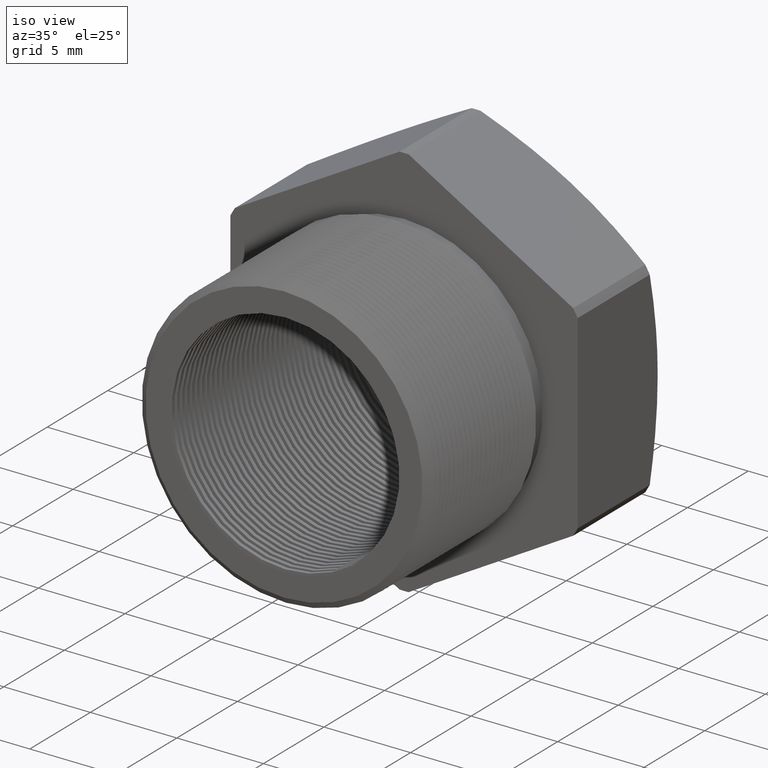
[diagram: clean part render]
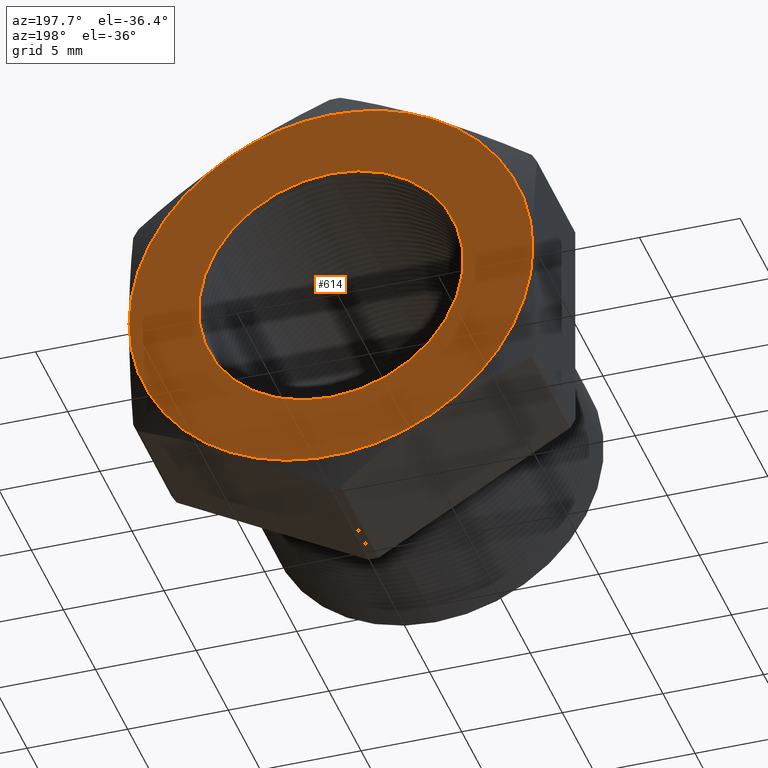
[diagram: tour spotlight — one face highlighted and labeled with its STEP entity id]
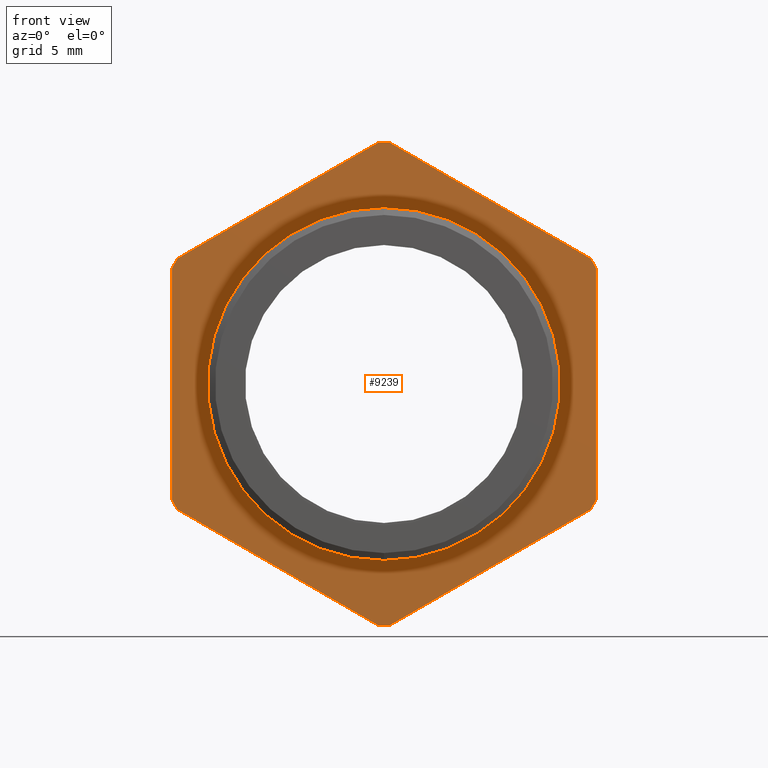
[diagram: tour spotlight — one face highlighted and labeled with its STEP entity id]
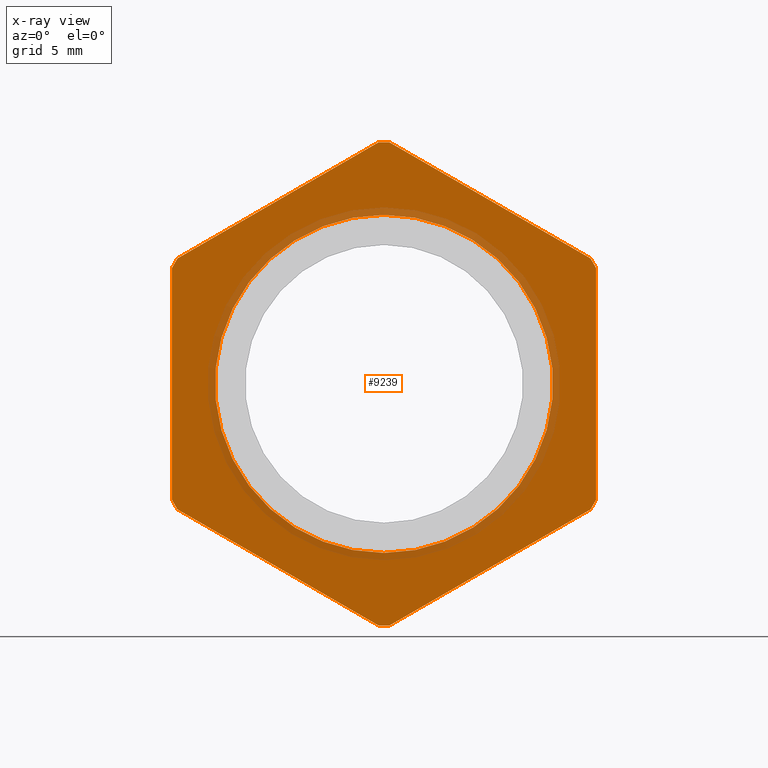
[diagram: x-ray of the same camera — body ghosted, this tour face saturated]
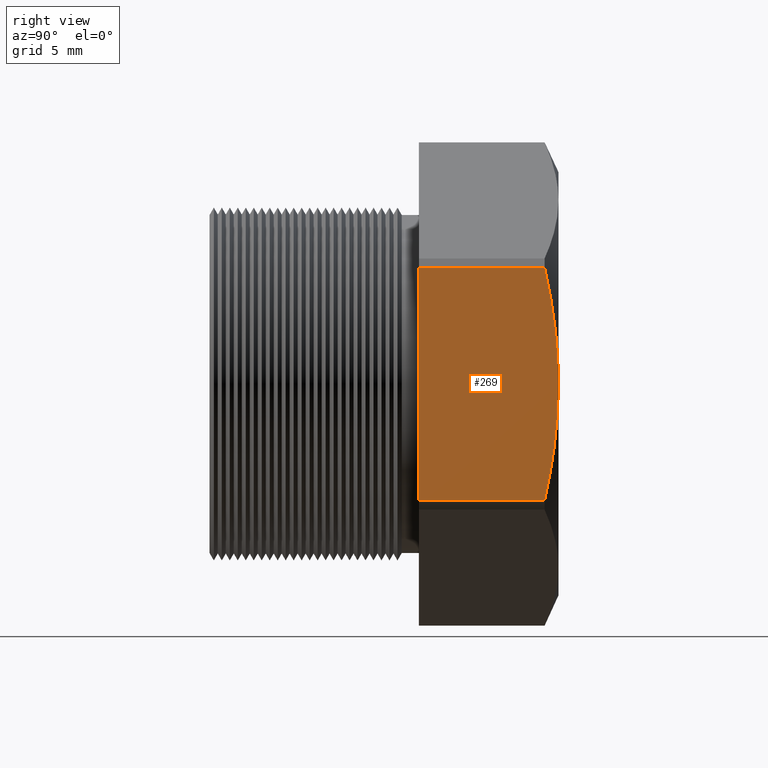
[diagram: tour spotlight — one face highlighted and labeled with its STEP entity id]
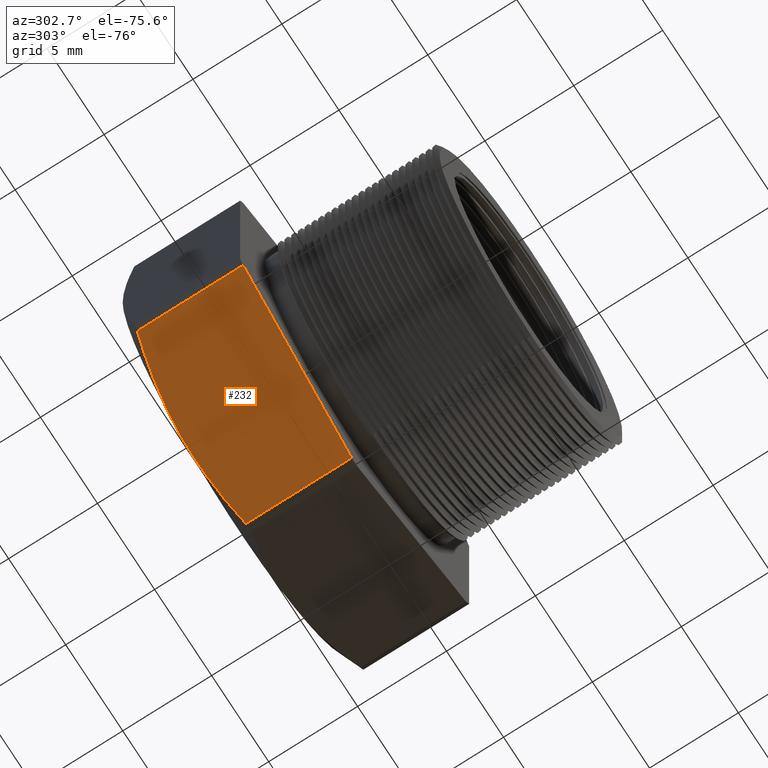
[diagram: tour spotlight — one face highlighted and labeled with its STEP entity id]
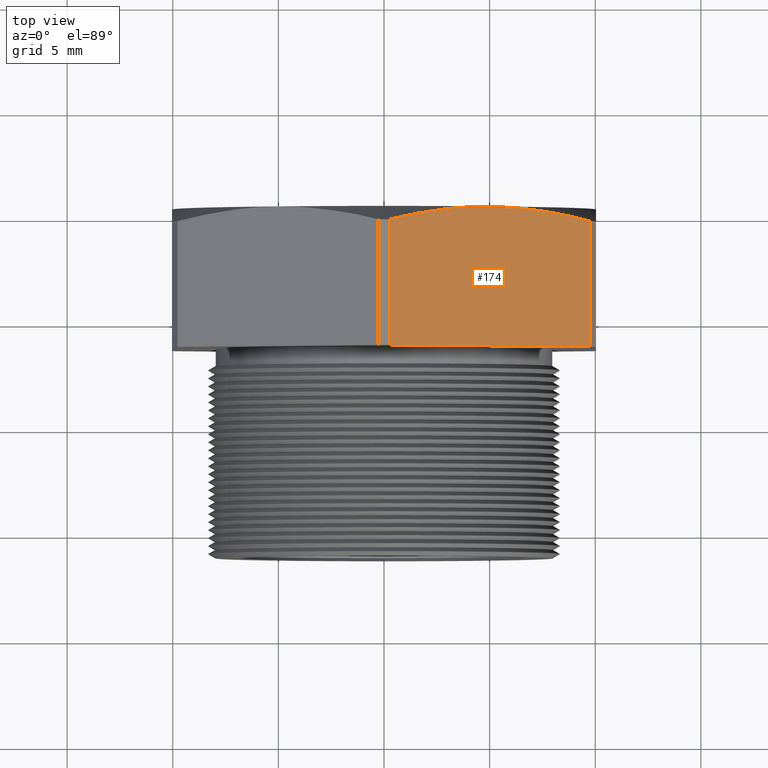
[diagram: tour spotlight — one face highlighted and labeled with its STEP entity id]
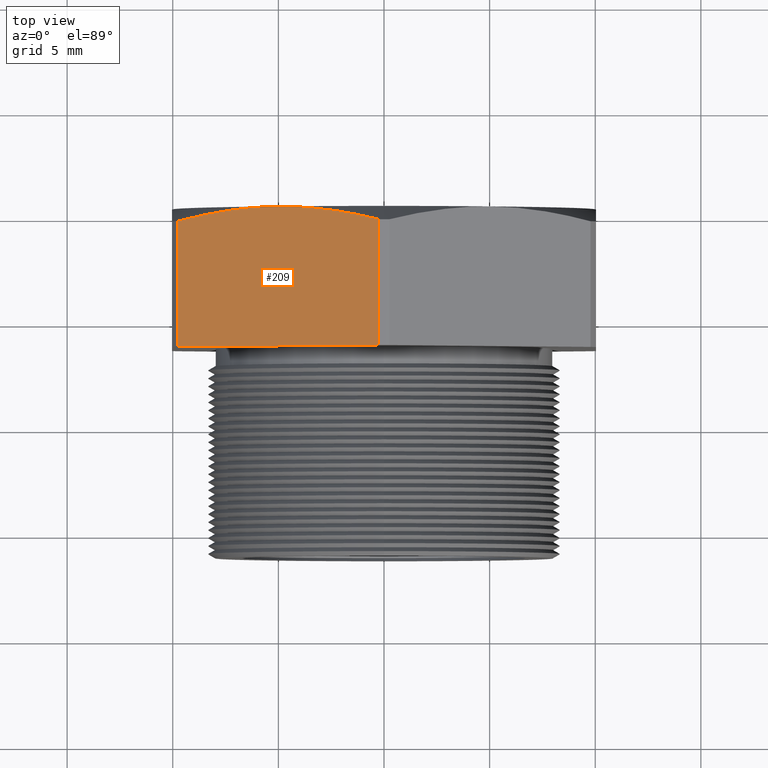
[diagram: tour spotlight — one face highlighted and labeled with its STEP entity id]
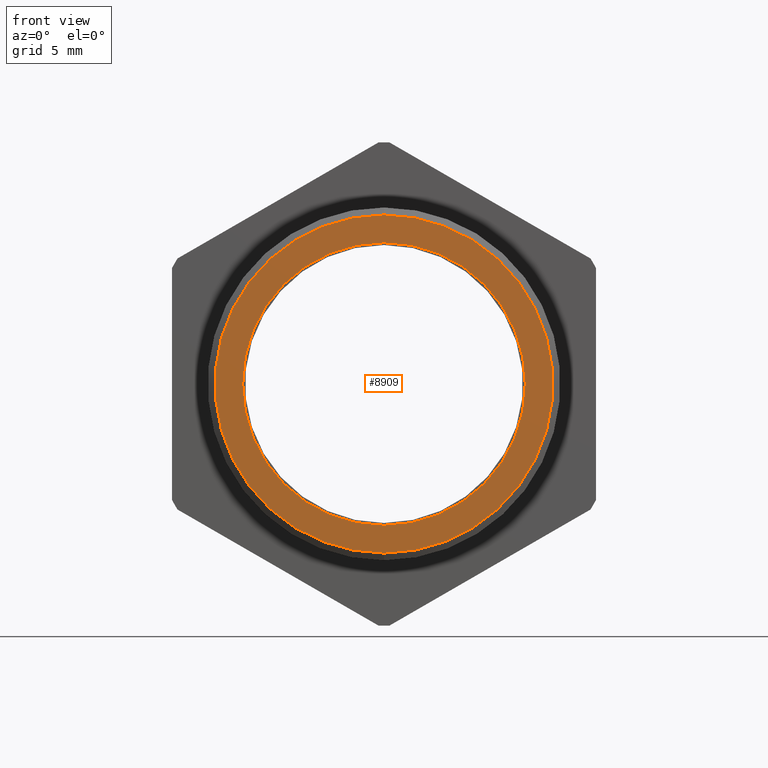
[diagram: tour spotlight — one face highlighted and labeled with its STEP entity id]
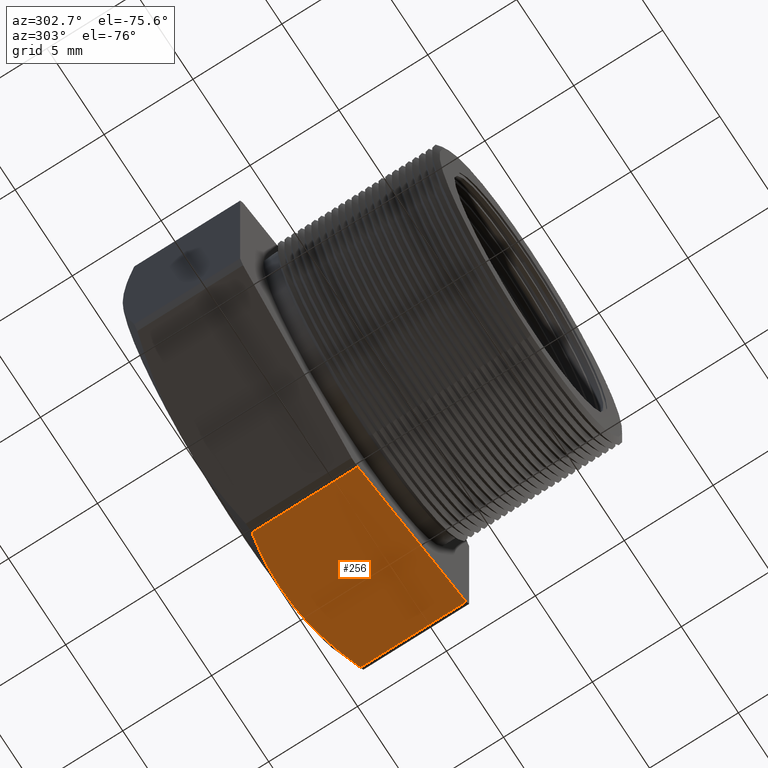
[diagram: tour spotlight — one face highlighted and labeled with its STEP entity id]
A machine part: a face-by-face anatomy tour. The part has 363 B-rep faces; the first image is the clean iso view, then the 8 largest visible faces are spotlighted one at a time (largest first), each with its STEP entity span.

Face 1 — auxiliary view, entity #614. In plain terms, the highlighted planar face has unit normal (0, 1, 0).
Definition (entity closure, byte-faithful):
#80 = EDGE_CURVE ( 'NONE', #88, #703, #2301, .T. ) ;
#81 = VERTEX_POINT ( 'NONE', #2297 ) ;
#82 = ORIENTED_EDGE ( 'NONE', *, *, #85, .T. ) ;
#83 = EDGE_CURVE ( 'NONE', #893, #86, #2295, .T. ) ;
#84 = ORIENTED_EDGE ( 'NONE', *, *, #83, .T. ) ;
#85 = EDGE_CURVE ( 'NONE', #81, #87, #2290, .T. ) ;
#86 = VERTEX_POINT ( 'NONE', #2286 ) ;
#87 = VERTEX_POINT ( 'NONE', #2285 ) ;
#88 = VERTEX_POINT ( 'NONE', #2284 ) ;
#90 = ORIENTED_EDGE ( 'NONE', *, *, #80, .T. ) ;
#91 = ORIENTED_EDGE ( 'NONE', *, *, #92, .T. ) ;
#92 = EDGE_CURVE ( 'NONE', #87, #88, #2282, .T. ) ;
#93 = EDGE_CURVE ( 'NONE', #86, #81, #2341, .T. ) ;
#94 = ORIENTED_EDGE ( 'NONE', *, *, #93, .T. ) ;
#112 = ORIENTED_EDGE ( 'NONE', *, *, #968, .T. ) ;
#611 = ORIENTED_EDGE ( 'NONE', *, *, #636, .T. ) ;
#612 = EDGE_LOOP ( 'NONE', ( #611, #615 ) ) ;
#614 = ADVANCED_FACE ( 'NONE', ( #3324, #3318 ), #3317, .T. ) ;
#615 = ORIENTED_EDGE ( 'NONE', *, *, #2105, .T. ) ;
#632 = EDGE_LOOP ( 'NONE', ( #707, #112, #84, #94, #82, #91, #90 ) ) ;
#636 = EDGE_CURVE ( 'NONE', #2107, #2106, #3338, .T. ) ;
#703 = VERTEX_POINT ( 'NONE', #3464 ) ;
#705 = EDGE_CURVE ( 'NONE', #703, #898, #3458, .T. ) ;
#707 = ORIENTED_EDGE ( 'NONE', *, *, #705, .T. ) ;
#893 = VERTEX_POINT ( 'NONE', #3805 ) ;
#898 = VERTEX_POINT ( 'NONE', #3848 ) ;
#968 = EDGE_CURVE ( 'NONE', #898, #893, #3973, .T. ) ;
#1185 = DIRECTION ( 'NONE',  ( 0.0000000000000000000, 0.0000000000000000000, 1.000000000000000000 ) ) ;
#2105 = EDGE_CURVE ( 'NONE', #2106, #2107, #6265, .T. ) ;
#2106 = VERTEX_POINT ( 'NONE', #6253 ) ;
#2107 = VERTEX_POINT ( 'NONE', #6252 ) ;
#2279 = DIRECTION ( 'NONE',  ( 0.0000000000000000000, 1.000000000000000000, 0.0000000000000000000 ) ) ;
#2280 = CARTESIAN_POINT ( 'NONE',  ( 0.0000000000000000000, 0.4075548905829479200, 0.0000000000000000000 ) ) ;
#2281 = AXIS2_PLACEMENT_3D ( 'NONE', #2280, #2279, #1185 ) ;
#2282 = CIRCLE ( 'NONE', #2281, 0.3949999999999999600 ) ;
#2284 = CARTESIAN_POINT ( 'NONE',  ( -0.3949999999999999600, 0.4075548905829479200, 0.0000000000000000000 ) ) ;
#2285 = CARTESIAN_POINT ( 'NONE',  ( -0.1975000000000000900, 0.4075548905829479200, -0.3420800344948533000 ) ) ;
#2286 = CARTESIAN_POINT ( 'NONE',  ( 0.3949999999999999600, 0.4075548905829479200, 1.182924880895400300E-016 ) ) ;
#2287 = DIRECTION ( 'NONE',  ( 0.0000000000000000000, 0.0000000000000000000, 1.000000000000000000 ) ) ;
#2288 = DIRECTION ( 'NONE',  ( 0.0000000000000000000, 1.000000000000000000, 0.0000000000000000000 ) ) ;
#2289 = AXIS2_PLACEMENT_3D ( 'NONE', #2296, #2288, #2287 ) ;
#2290 = CIRCLE ( 'NONE', #2289, 0.3949999999999999600 ) ;
#2291 = DIRECTION ( 'NONE',  ( 0.0000000000000000000, 0.0000000000000000000, 1.000000000000000000 ) ) ;
#2292 = DIRECTION ( 'NONE',  ( 0.0000000000000000000, 1.000000000000000000, 0.0000000000000000000 ) ) ;
#2293 = CARTESIAN_POINT ( 'NONE',  ( 0.0000000000000000000, 0.4075548905829479200, 0.0000000000000000000 ) ) ;
#2294 = AXIS2_PLACEMENT_3D ( 'NONE', #2293, #2292, #2291 ) ;
#2295 = CIRCLE ( 'NONE', #2294, 0.3949999999999999600 ) ;
#2296 = CARTESIAN_POINT ( 'NONE',  ( 0.0000000000000000000, 0.4075548905829479200, 0.0000000000000000000 ) ) ;
#2297 = CARTESIAN_POINT ( 'NONE',  ( 0.1975000000000000100, 0.4075548905829479200, -0.3420800344948534100 ) ) ;
#2298 = DIRECTION ( 'NONE',  ( 0.0000000000000000000, 0.0000000000000000000, 1.000000000000000000 ) ) ;
#2299 = DIRECTION ( 'NONE',  ( 0.0000000000000000000, 1.000000000000000000, 0.0000000000000000000 ) ) ;
#2300 = AXIS2_PLACEMENT_3D ( 'NONE', #2307, #2299, #2298 ) ;
#2301 = CIRCLE ( 'NONE', #2300, 0.3949999999999999600 ) ;
#2307 = CARTESIAN_POINT ( 'NONE',  ( 0.0000000000000000000, 0.4075548905829479200, 0.0000000000000000000 ) ) ;
#2337 = DIRECTION ( 'NONE',  ( 0.0000000000000000000, 0.0000000000000000000, 1.000000000000000000 ) ) ;
#2338 = DIRECTION ( 'NONE',  ( 0.0000000000000000000, 1.000000000000000000, 0.0000000000000000000 ) ) ;
#2339 = CARTESIAN_POINT ( 'NONE',  ( 0.0000000000000000000, 0.4075548905829479200, 0.0000000000000000000 ) ) ;
#2340 = AXIS2_PLACEMENT_3D ( 'NONE', #2339, #2338, #2337 ) ;
#2341 = CIRCLE ( 'NONE', #2340, 0.3949999999999999600 ) ;
#3312 = DIRECTION ( 'NONE',  ( 0.0000000000000000000, -0.0000000000000000000, 1.000000000000000000 ) ) ;
#3313 = DIRECTION ( 'NONE',  ( 0.0000000000000000000, 1.000000000000000000, 0.0000000000000000000 ) ) ;
#3314 = AXIS2_PLACEMENT_3D ( 'NONE', #3316, #3313, #3312 ) ;
#3316 = CARTESIAN_POINT ( 'NONE',  ( 0.4502999999999999800, 0.4075548905829479200, 0.0000000000000000000 ) ) ;
#3317 = PLANE ( 'NONE',  #3314 ) ;
#3318 = FACE_OUTER_BOUND ( 'NONE', #632, .T. ) ;
#3324 = FACE_BOUND ( 'NONE', #612, .T. ) ;
#3334 = DIRECTION ( 'NONE',  ( 0.0000000000000000000, 0.0000000000000000000, -1.000000000000000000 ) ) ;
#3335 = DIRECTION ( 'NONE',  ( -0.0000000000000000000, -1.000000000000000000, -0.0000000000000000000 ) ) ;
#3336 = CARTESIAN_POINT ( 'NONE',  ( 0.0000000000000000000, 0.4075548905829479200, 0.0000000000000000000 ) ) ;
#3337 = AXIS2_PLACEMENT_3D ( 'NONE', #3336, #3335, #3334 ) ;
#3338 = CIRCLE ( 'NONE', #3337, 0.2589880461203001900 ) ;
#3454 = DIRECTION ( 'NONE',  ( 0.0000000000000000000, 0.0000000000000000000, 1.000000000000000000 ) ) ;
#3455 = DIRECTION ( 'NONE',  ( 0.0000000000000000000, 1.000000000000000000, 0.0000000000000000000 ) ) ;
#3456 = CARTESIAN_POINT ( 'NONE',  ( 0.0000000000000000000, 0.4075548905829479200, 0.0000000000000000000 ) ) ;
#3457 = AXIS2_PLACEMENT_3D ( 'NONE', #3456, #3455, #3454 ) ;
#3458 = CIRCLE ( 'NONE', #3457, 0.3949999999999999600 ) ;
#3464 = CARTESIAN_POINT ( 'NONE',  ( -0.1975000000000000100, 0.4075548905829479200, 0.3420800344948533600 ) ) ;
#3805 = CARTESIAN_POINT ( 'NONE',  ( 0.1975000000000001800, 0.4075548905829479700, 0.3420800344948533000 ) ) ;
#3848 = CARTESIAN_POINT ( 'NONE',  ( 0.0000000000000000000, 0.4075548905829479200, 0.3949999999999999600 ) ) ;
#3969 = DIRECTION ( 'NONE',  ( 0.0000000000000000000, 0.0000000000000000000, 1.000000000000000000 ) ) ;
#3970 = DIRECTION ( 'NONE',  ( 0.0000000000000000000, 1.000000000000000000, 0.0000000000000000000 ) ) ;
#3971 = CARTESIAN_POINT ( 'NONE',  ( 0.0000000000000000000, 0.4075548905829479200, 0.0000000000000000000 ) ) ;
#3972 = AXIS2_PLACEMENT_3D ( 'NONE', #3971, #3970, #3969 ) ;
#3973 = CIRCLE ( 'NONE', #3972, 0.3949999999999999600 ) ;
#6252 = CARTESIAN_POINT ( 'NONE',  ( 0.0000000000000000000, 0.4075548905829479200, -0.2589880461203001900 ) ) ;
#6253 = CARTESIAN_POINT ( 'NONE',  ( 3.171688816986526800E-017, 0.4075548905829479200, 0.2589880461203001900 ) ) ;
#6255 = DIRECTION ( 'NONE',  ( 0.0000000000000000000, 0.0000000000000000000, -1.000000000000000000 ) ) ;
#6256 = DIRECTION ( 'NONE',  ( -0.0000000000000000000, -1.000000000000000000, -0.0000000000000000000 ) ) ;
#6257 = CARTESIAN_POINT ( 'NONE',  ( 0.0000000000000000000, 0.4075548905829479200, 0.0000000000000000000 ) ) ;
#6258 = AXIS2_PLACEMENT_3D ( 'NONE', #6257, #6256, #6255 ) ;
#6265 = CIRCLE ( 'NONE', #6258, 0.2589880461203001900 ) ;

Face 2 — front view, entity #9239. An x-ray twin of the same camera follows (body ghosted, this face saturated) — the face is partly hidden behind the body. In plain terms, the highlighted planar face has unit normal (0, -1, -0).
Definition (entity closure, byte-faithful):
#77 = VERTEX_POINT ( 'NONE', #2311 ) ;
#78 = EDGE_CURVE ( 'NONE', #77, #663, #2306, .T. ) ;
#95 = VERTEX_POINT ( 'NONE', #2336 ) ;
#96 = VERTEX_POINT ( 'NONE', #2335 ) ;
#103 = VERTEX_POINT ( 'NONE', #2329 ) ;
#105 = EDGE_CURVE ( 'NONE', #122, #96, #2322, .T. ) ;
#113 = EDGE_CURVE ( 'NONE', #95, #103, #2370, .T. ) ;
#122 = VERTEX_POINT ( 'NONE', #2347 ) ;
#132 = VERTEX_POINT ( 'NONE', #2388 ) ;
#142 = EDGE_CURVE ( 'NONE', #663, #144, #2418, .T. ) ;
#144 = VERTEX_POINT ( 'NONE', #2413 ) ;
#145 = EDGE_CURVE ( 'NONE', #153, #132, #2412, .T. ) ;
#147 = VERTEX_POINT ( 'NONE', #2406 ) ;
#153 = VERTEX_POINT ( 'NONE', #2405 ) ;
#158 = VERTEX_POINT ( 'NONE', #2457 ) ;
#171 = EDGE_CURVE ( 'NONE', #158, #214, #2440, .T. ) ;
#187 = VERTEX_POINT ( 'NONE', #2469 ) ;
#201 = EDGE_CURVE ( 'NONE', #147, #187, #2513, .T. ) ;
#212 = EDGE_CURVE ( 'NONE', #214, #147, #2549, .T. ) ;
#214 = VERTEX_POINT ( 'NONE', #2545 ) ;
#223 = EDGE_CURVE ( 'NONE', #103, #158, #2583, .T. ) ;
#234 = EDGE_CURVE ( 'NONE', #187, #153, #2564, .T. ) ;
#248 = EDGE_CURVE ( 'NONE', #132, #77, #2638, .T. ) ;
#265 = EDGE_CURVE ( 'NONE', #144, #122, #2653, .T. ) ;
#272 = EDGE_CURVE ( 'NONE', #96, #95, #2689, .T. ) ;
#663 = VERTEX_POINT ( 'NONE', #3412 ) ;
#2090 = EDGE_CURVE ( 'NONE', #2091, #2092, #6230, .T. ) ;
#2091 = VERTEX_POINT ( 'NONE', #6220 ) ;
#2092 = VERTEX_POINT ( 'NONE', #6219 ) ;
#2302 = DIRECTION ( 'NONE',  ( 0.0000000000000000000, 0.0000000000000000000, -1.000000000000000000 ) ) ;
#2303 = DIRECTION ( 'NONE',  ( -0.0000000000000000000, -1.000000000000000000, -0.0000000000000000000 ) ) ;
#2304 = CARTESIAN_POINT ( 'NONE',  ( 0.0000000000000000000, 0.1475548905829479600, 0.0000000000000000000 ) ) ;
#2305 = AXIS2_PLACEMENT_3D ( 'NONE', #2304, #2303, #2302 ) ;
#2306 = CIRCLE ( 'NONE', #2305, 0.4502999999999999800 ) ;
#2311 = CARTESIAN_POINT ( 'NONE',  ( -0.01026000026703716000, 0.1475548905829479600, -0.4501830987437449600 ) ) ;
#2318 = DIRECTION ( 'NONE',  ( 0.0000000000000000000, 0.0000000000000000000, -1.000000000000000000 ) ) ;
#2319 = DIRECTION ( 'NONE',  ( -0.0000000000000000000, -1.000000000000000000, -0.0000000000000000000 ) ) ;
#2320 = CARTESIAN_POINT ( 'NONE',  ( 0.0000000000000000000, 0.1475548905829479600, 0.0000000000000000000 ) ) ;
#2321 = AXIS2_PLACEMENT_3D ( 'NONE', #2320, #2319, #2318 ) ;
#2322 = CIRCLE ( 'NONE', #2321, 0.4502999999999999800 ) ;
#2329 = CARTESIAN_POINT ( 'NONE',  ( 0.3847399997329628600, 0.1475548905829479600, 0.2339769702459617900 ) ) ;
#2335 = CARTESIAN_POINT ( 'NONE',  ( 0.3950000000000000200, 0.1475548905829479600, -0.2162061284977832000 ) ) ;
#2336 = CARTESIAN_POINT ( 'NONE',  ( 0.3949999999999999100, 0.1475548905829479600, 0.2162061284977834200 ) ) ;
#2347 = CARTESIAN_POINT ( 'NONE',  ( 0.3847399997329629100, 0.1475548905829479600, -0.2339769702459617300 ) ) ;
#2362 = DIRECTION ( 'NONE',  ( 0.0000000000000000000, 0.0000000000000000000, -1.000000000000000000 ) ) ;
#2363 = DIRECTION ( 'NONE',  ( -0.0000000000000000000, -1.000000000000000000, -0.0000000000000000000 ) ) ;
#2364 = CARTESIAN_POINT ( 'NONE',  ( 0.0000000000000000000, 0.1475548905829479600, 0.0000000000000000000 ) ) ;
#2365 = AXIS2_PLACEMENT_3D ( 'NONE', #2364, #2363, #2362 ) ;
#2370 = CIRCLE ( 'NONE', #2365, 0.4502999999999999800 ) ;
#2388 = CARTESIAN_POINT ( 'NONE',  ( -0.3847399997329630200, 0.1475548905829479600, -0.2339769702459614800 ) ) ;
#2405 = CARTESIAN_POINT ( 'NONE',  ( -0.3949999999999999600, 0.1475548905829479600, -0.2162061284977833100 ) ) ;
#2406 = CARTESIAN_POINT ( 'NONE',  ( -0.3847399997329628000, 0.1475548905829479600, 0.2339769702459618100 ) ) ;
#2408 = DIRECTION ( 'NONE',  ( 0.0000000000000000000, 0.0000000000000000000, -1.000000000000000000 ) ) ;
#2409 = DIRECTION ( 'NONE',  ( -0.0000000000000000000, -1.000000000000000000, -0.0000000000000000000 ) ) ;
#2410 = CARTESIAN_POINT ( 'NONE',  ( 0.0000000000000000000, 0.1475548905829479600, 0.0000000000000000000 ) ) ;
#2411 = AXIS2_PLACEMENT_3D ( 'NONE', #2410, #2409, #2408 ) ;
#2412 = CIRCLE ( 'NONE', #2411, 0.4502999999999999800 ) ;
#2413 = CARTESIAN_POINT ( 'NONE',  ( 0.01026000026703700000, 0.1475548905829479600, -0.4501830987437449600 ) ) ;
#2414 = DIRECTION ( 'NONE',  ( 0.0000000000000000000, 0.0000000000000000000, -1.000000000000000000 ) ) ;
#2415 = DIRECTION ( 'NONE',  ( -0.0000000000000000000, -1.000000000000000000, -0.0000000000000000000 ) ) ;
#2416 = CARTESIAN_POINT ( 'NONE',  ( 0.0000000000000000000, 0.1475548905829479600, 0.0000000000000000000 ) ) ;
#2417 = AXIS2_PLACEMENT_3D ( 'NONE', #2416, #2415, #2414 ) ;
#2418 = CIRCLE ( 'NONE', #2417, 0.4502999999999999800 ) ;
#2436 = DIRECTION ( 'NONE',  ( 0.0000000000000000000, 0.0000000000000000000, -1.000000000000000000 ) ) ;
#2437 = DIRECTION ( 'NONE',  ( -0.0000000000000000000, -1.000000000000000000, -0.0000000000000000000 ) ) ;
#2438 = CARTESIAN_POINT ( 'NONE',  ( 0.0000000000000000000, 0.1475548905829479600, 0.0000000000000000000 ) ) ;
#2439 = AXIS2_PLACEMENT_3D ( 'NONE', #2438, #2437, #2436 ) ;
#2440 = CIRCLE ( 'NONE', #2439, 0.4502999999999999800 ) ;
#2457 = CARTESIAN_POINT ( 'NONE',  ( 0.01026000026703743400, 0.1475548905829479600, 0.4501830987437449600 ) ) ;
#2469 = CARTESIAN_POINT ( 'NONE',  ( -0.3949999999999999600, 0.1475548905829479600, 0.2162061284977833100 ) ) ;
#2509 = DIRECTION ( 'NONE',  ( 0.0000000000000000000, 0.0000000000000000000, -1.000000000000000000 ) ) ;
#2510 = DIRECTION ( 'NONE',  ( -0.0000000000000000000, -1.000000000000000000, -0.0000000000000000000 ) ) ;
#2511 = CARTESIAN_POINT ( 'NONE',  ( 0.0000000000000000000, 0.1475548905829479600, 0.0000000000000000000 ) ) ;
#2512 = AXIS2_PLACEMENT_3D ( 'NONE', #2511, #2510, #2509 ) ;
#2513 = CIRCLE ( 'NONE', #2512, 0.4502999999999999800 ) ;
#2545 = CARTESIAN_POINT ( 'NONE',  ( -0.01026000026703719400, 0.1475548905829479600, 0.4501830987437449000 ) ) ;
#2546 = DIRECTION ( 'NONE',  ( -0.8660254037844386000, 0.0000000000000000000, -0.4999999999999998300 ) ) ;
#2547 = VECTOR ( 'NONE', #2546, 39.37007874015748900 ) ;
#2548 = CARTESIAN_POINT ( 'NONE',  ( 0.03875000000000002700, 0.1475548905829479600, 0.4784790355909024400 ) ) ;
#2549 = LINE ( 'NONE', #2548, #2547 ) ;
#2561 = DIRECTION ( 'NONE',  ( 0.0000000000000000000, 0.0000000000000000000, -1.000000000000000000 ) ) ;
#2562 = VECTOR ( 'NONE', #2561, 39.37007874015748100 ) ;
#2563 = CARTESIAN_POINT ( 'NONE',  ( -0.3949999999999999600, 0.1475548905829479600, 0.0000000000000000000 ) ) ;
#2564 = LINE ( 'NONE', #2563, #2562 ) ;
#2580 = DIRECTION ( 'NONE',  ( -0.8660254037844386000, 0.0000000000000000000, 0.5000000000000002200 ) ) ;
#2581 = VECTOR ( 'NONE', #2580, 39.37007874015747400 ) ;
#2582 = CARTESIAN_POINT ( 'NONE',  ( 0.4337500000000000200, 0.1475548905829479600, 0.2056810333988042200 ) ) ;
#2583 = LINE ( 'NONE', #2582, #2581 ) ;
#2629 = DIRECTION ( 'NONE',  ( 0.8660254037844386000, 0.0000000000000000000, -0.5000000000000002200 ) ) ;
#2630 = VECTOR ( 'NONE', #2629, 39.37007874015747400 ) ;
#2637 = CARTESIAN_POINT ( 'NONE',  ( 0.03874999999999989600, 0.1475548905829479600, -0.4784790355909022700 ) ) ;
#2638 = LINE ( 'NONE', #2637, #2630 ) ;
#2650 = DIRECTION ( 'NONE',  ( 0.8660254037844386000, 0.0000000000000000000, 0.4999999999999998300 ) ) ;
#2651 = VECTOR ( 'NONE', #2650, 39.37007874015748900 ) ;
#2652 = CARTESIAN_POINT ( 'NONE',  ( 0.4337499999999999700, 0.1475548905829479600, -0.2056810333988042500 ) ) ;
#2653 = LINE ( 'NONE', #2652, #2651 ) ;
#2680 = DIRECTION ( 'NONE',  ( -2.994746533912406200E-016, 0.0000000000000000000, 1.000000000000000000 ) ) ;
#2681 = VECTOR ( 'NONE', #2680, 39.37007874015748100 ) ;
#2688 = CARTESIAN_POINT ( 'NONE',  ( 0.3949999999999999600, 0.1475548905829479600, 2.395797227129924000E-017 ) ) ;
#2689 = LINE ( 'NONE', #2688, #2681 ) ;
#3412 = CARTESIAN_POINT ( 'NONE',  ( 0.0000000000000000000, 0.1475548905829479600, -0.4502999999999999800 ) ) ;
#6219 = CARTESIAN_POINT ( 'NONE',  ( 3.857637417314162700E-017, 0.1475548905829479600, 0.3150000000000000000 ) ) ;
#6220 = CARTESIAN_POINT ( 'NONE',  ( 0.0000000000000000000, 0.1475548905829479600, -0.3150000000000000000 ) ) ;
#6221 = DIRECTION ( 'NONE',  ( 0.0000000000000000000, 0.0000000000000000000, -1.000000000000000000 ) ) ;
#6222 = DIRECTION ( 'NONE',  ( -0.0000000000000000000, -1.000000000000000000, -0.0000000000000000000 ) ) ;
#6223 = CARTESIAN_POINT ( 'NONE',  ( 0.0000000000000000000, 0.1475548905829479600, 0.0000000000000000000 ) ) ;
#6224 = AXIS2_PLACEMENT_3D ( 'NONE', #6223, #6222, #6221 ) ;
#6230 = CIRCLE ( 'NONE', #6224, 0.3150000000000000000 ) ;
#8071 = DIRECTION ( 'NONE',  ( 0.0000000000000000000, 0.0000000000000000000, -1.000000000000000000 ) ) ;
#8072 = DIRECTION ( 'NONE',  ( -0.0000000000000000000, -1.000000000000000000, -0.0000000000000000000 ) ) ;
#8073 = CARTESIAN_POINT ( 'NONE',  ( 0.0000000000000000000, 0.1475548905829479600, 0.0000000000000000000 ) ) ;
#8074 = AXIS2_PLACEMENT_3D ( 'NONE', #8073, #8072, #8071 ) ;
#8078 = CIRCLE ( 'NONE', #8074, 0.3150000000000000000 ) ;
#8125 = DIRECTION ( 'NONE',  ( 0.0000000000000000000, 0.0000000000000000000, -1.000000000000000000 ) ) ;
#8126 = DIRECTION ( 'NONE',  ( 0.0000000000000000000, -1.000000000000000000, -0.0000000000000000000 ) ) ;
#8127 = CARTESIAN_POINT ( 'NONE',  ( 0.3150000000000000000, 0.1475548905829479600, 0.0000000000000000000 ) ) ;
#8128 = AXIS2_PLACEMENT_3D ( 'NONE', #8127, #8126, #8125 ) ;
#8130 = PLANE ( 'NONE',  #8128 ) ;
#8131 = FACE_OUTER_BOUND ( 'NONE', #9224, .T. ) ;
#8132 = FACE_BOUND ( 'NONE', #9220, .T. ) ;
#8905 = ORIENTED_EDGE ( 'NONE', *, *, #265, .T. ) ;
#8908 = ORIENTED_EDGE ( 'NONE', *, *, #142, .T. ) ;
#8994 = ORIENTED_EDGE ( 'NONE', *, *, #171, .T. ) ;
#8997 = ORIENTED_EDGE ( 'NONE', *, *, #223, .T. ) ;
#8998 = ORIENTED_EDGE ( 'NONE', *, *, #212, .T. ) ;
#8999 = ORIENTED_EDGE ( 'NONE', *, *, #201, .T. ) ;
#9000 = ORIENTED_EDGE ( 'NONE', *, *, #113, .T. ) ;
#9001 = ORIENTED_EDGE ( 'NONE', *, *, #272, .T. ) ;
#9003 = ORIENTED_EDGE ( 'NONE', *, *, #145, .T. ) ;
#9004 = ORIENTED_EDGE ( 'NONE', *, *, #234, .T. ) ;
#9016 = ORIENTED_EDGE ( 'NONE', *, *, #248, .T. ) ;
#9018 = ORIENTED_EDGE ( 'NONE', *, *, #78, .T. ) ;
#9203 = EDGE_CURVE ( 'NONE', #2092, #2091, #8078, .T. ) ;
#9215 = ORIENTED_EDGE ( 'NONE', *, *, #2090, .F. ) ;
#9220 = EDGE_LOOP ( 'NONE', ( #9215, #9226 ) ) ;
#9224 = EDGE_LOOP ( 'NONE', ( #9225, #9001, #9000, #8997, #8994, #8998, #8999, #9004, #9003, #9016, #9018, #8908, #8905 ) ) ;
#9225 = ORIENTED_EDGE ( 'NONE', *, *, #105, .T. ) ;
#9226 = ORIENTED_EDGE ( 'NONE', *, *, #9203, .F. ) ;
#9239 = ADVANCED_FACE ( 'NONE', ( #8132, #8131 ), #8130, .T. ) ;

Face 3 — right view, entity #269. In plain terms, the highlighted planar face has unit normal (1, -0, 0).
Definition (entity closure, byte-faithful):
#86 = VERTEX_POINT ( 'NONE', #2286 ) ;
#95 = VERTEX_POINT ( 'NONE', #2336 ) ;
#96 = VERTEX_POINT ( 'NONE', #2335 ) ;
#97 = EDGE_CURVE ( 'NONE', #95, #106, #2334, .T. ) ;
#106 = VERTEX_POINT ( 'NONE', #2317 ) ;
#126 = EDGE_CURVE ( 'NONE', #130, #96, #2398, .T. ) ;
#130 = VERTEX_POINT ( 'NONE', #2389 ) ;
#237 = ORIENTED_EDGE ( 'NONE', *, *, #126, .F. ) ;
#243 = EDGE_CURVE ( 'NONE', #86, #106, #2593, .T. ) ;
#249 = ORIENTED_EDGE ( 'NONE', *, *, #253, .T. ) ;
#251 = EDGE_LOOP ( 'NONE', ( #237, #249, #257, #275, #273 ) ) ;
#253 = EDGE_CURVE ( 'NONE', #130, #86, #2620, .T. ) ;
#257 = ORIENTED_EDGE ( 'NONE', *, *, #243, .T. ) ;
#269 = ADVANCED_FACE ( 'NONE', ( #2642 ), #2695, .T. ) ;
#272 = EDGE_CURVE ( 'NONE', #96, #95, #2689, .T. ) ;
#273 = ORIENTED_EDGE ( 'NONE', *, *, #272, .F. ) ;
#275 = ORIENTED_EDGE ( 'NONE', *, *, #97, .F. ) ;
#2286 = CARTESIAN_POINT ( 'NONE',  ( 0.3949999999999999600, 0.4075548905829479200, 1.182924880895400300E-016 ) ) ;
#2317 = CARTESIAN_POINT ( 'NONE',  ( 0.3949999999999999100, 0.3817680770869766300, 0.2162061284977834200 ) ) ;
#2331 = DIRECTION ( 'NONE',  ( 0.0000000000000000000, 1.000000000000000000, 0.0000000000000000000 ) ) ;
#2332 = VECTOR ( 'NONE', #2331, 39.37007874015748100 ) ;
#2333 = CARTESIAN_POINT ( 'NONE',  ( 0.3949999999999999100, 0.0000000000000000000, 0.2162061284977834200 ) ) ;
#2334 = LINE ( 'NONE', #2333, #2332 ) ;
#2335 = CARTESIAN_POINT ( 'NONE',  ( 0.3950000000000000200, 0.1475548905829479600, -0.2162061284977832000 ) ) ;
#2336 = CARTESIAN_POINT ( 'NONE',  ( 0.3949999999999999100, 0.1475548905829479600, 0.2162061284977834200 ) ) ;
#2389 = CARTESIAN_POINT ( 'NONE',  ( 0.3950000000000000200, 0.3817680770869802400, -0.2162061284977868600 ) ) ;
#2395 = DIRECTION ( 'NONE',  ( -0.0000000000000000000, -1.000000000000000000, -0.0000000000000000000 ) ) ;
#2396 = VECTOR ( 'NONE', #2395, 39.37007874015748100 ) ;
#2397 = CARTESIAN_POINT ( 'NONE',  ( 0.3950000000000000200, 0.0000000000000000000, -0.2162061284977832000 ) ) ;
#2398 = LINE ( 'NONE', #2397, #2396 ) ;
#2584 = CARTESIAN_POINT ( 'NONE',  ( 0.3949999999999999100, 0.3817680770869766300, 0.2162061284977834200 ) ) ;
#2585 = CARTESIAN_POINT ( 'NONE',  ( 0.3950000000000000200, 0.3857277810940236700, 0.1985203524229407800 ) ) ;
#2586 = CARTESIAN_POINT ( 'NONE',  ( 0.3949999999999999600, 0.3893425190301801900, 0.1807096371993064100 ) ) ;
#2587 = CARTESIAN_POINT ( 'NONE',  ( 0.3949999999999997400, 0.3957247617336610600, 0.1447813574706902400 ) ) ;
#2588 = CARTESIAN_POINT ( 'NONE',  ( 0.3949999999999999100, 0.3984941280352430300, 0.1266205618416595700 ) ) ;
#2589 = CARTESIAN_POINT ( 'NONE',  ( 0.3949999999999999100, 0.4052039048660166500, 0.07230252560180081000 ) ) ;
#2590 = CARTESIAN_POINT ( 'NONE',  ( 0.3949999999999999100, 0.4075548905829478600, 0.03612960384967655500 ) ) ;
#2591 = CARTESIAN_POINT ( 'NONE',  ( 0.3949999999999999600, 0.4075548905829479200, 1.182924880895400300E-016 ) ) ;
#2593 = B_SPLINE_CURVE_WITH_KNOTS ( 'NONE', 3,
 ( #2591, #2590, #2589, #2588, #2587, #2586, #2585, #2584 ),
 .UNSPECIFIED., .F., .F.,
 ( 4, 2, 2, 4 ),
 ( 0.01592323799025090500, 0.01869311476406807600, 0.02007805315097666000, 0.02146299153788524400 ),
 .UNSPECIFIED. ) ;
#2611 = CARTESIAN_POINT ( 'NONE',  ( 0.3949999999999999600, 0.4075548905829479200, 1.182924880895400300E-016 ) ) ;
#2612 = CARTESIAN_POINT ( 'NONE',  ( 0.3950000000000000200, 0.4075548905829479700, -0.03615556656781510100 ) ) ;
#2613 = CARTESIAN_POINT ( 'NONE',  ( 0.3949999999999999100, 0.4052015678598533400, -0.07226777217285926300 ) ) ;
#2614 = CARTESIAN_POINT ( 'NONE',  ( 0.3950000000000000200, 0.3963026295804095700, -0.1444149386210269400 ) ) ;
#2615 = CARTESIAN_POINT ( 'NONE',  ( 0.3949999999999999600, 0.3897436049692236100, -0.1805839203849901600 ) ) ;
#2616 = CARTESIAN_POINT ( 'NONE',  ( 0.3950000000000000200, 0.3817680770869802400, -0.2162061284977868600 ) ) ;
#2620 = B_SPLINE_CURVE_WITH_KNOTS ( 'NONE', 3,
 ( #2616, #2615, #2614, #2613, #2612, #2611 ),
 .UNSPECIFIED., .F., .F.,
 ( 4, 2, 4 ),
 ( 0.01037950357804595100, 0.01315137078414842900, 0.01592323799025090500 ),
 .UNSPECIFIED. ) ;
#2642 = FACE_OUTER_BOUND ( 'NONE', #251, .T. ) ;
#2680 = DIRECTION ( 'NONE',  ( -2.994746533912406200E-016, 0.0000000000000000000, 1.000000000000000000 ) ) ;
#2681 = VECTOR ( 'NONE', #2680, 39.37007874015748100 ) ;
#2688 = CARTESIAN_POINT ( 'NONE',  ( 0.3949999999999999600, 0.1475548905829479600, 2.395797227129924000E-017 ) ) ;
#2689 = LINE ( 'NONE', #2688, #2681 ) ;
#2691 = DIRECTION ( 'NONE',  ( 2.994746533912406200E-016, 0.0000000000000000000, -1.000000000000000000 ) ) ;
#2692 = DIRECTION ( 'NONE',  ( 1.000000000000000000, -0.0000000000000000000, 2.994746533912406200E-016 ) ) ;
#2693 = CARTESIAN_POINT ( 'NONE',  ( 0.3950000000000000200, 0.4075548905829479700, -0.2280533563299023100 ) ) ;
#2694 = AXIS2_PLACEMENT_3D ( 'NONE', #2693, #2692, #2691 ) ;
#2695 = PLANE ( 'NONE',  #2694 ) ;

Face 4 — auxiliary view, entity #232. In plain terms, the highlighted planar face has unit normal (-0.5, 0, -0.866).
Definition (entity closure, byte-faithful):
#77 = VERTEX_POINT ( 'NONE', #2311 ) ;
#87 = VERTEX_POINT ( 'NONE', #2285 ) ;
#132 = VERTEX_POINT ( 'NONE', #2388 ) ;
#141 = EDGE_CURVE ( 'NONE', #165, #132, #2422, .T. ) ;
#165 = VERTEX_POINT ( 'NONE', #2441 ) ;
#225 = EDGE_LOOP ( 'NONE', ( #233, #242, #241, #238, #244 ) ) ;
#232 = ADVANCED_FACE ( 'NONE', ( #2579 ), #2576, .T. ) ;
#233 = ORIENTED_EDGE ( 'NONE', *, *, #141, .F. ) ;
#238 = ORIENTED_EDGE ( 'NONE', *, *, #624, .F. ) ;
#240 = EDGE_CURVE ( 'NONE', #165, #87, #2600, .T. ) ;
#241 = ORIENTED_EDGE ( 'NONE', *, *, #246, .T. ) ;
#242 = ORIENTED_EDGE ( 'NONE', *, *, #240, .T. ) ;
#244 = ORIENTED_EDGE ( 'NONE', *, *, #248, .F. ) ;
#246 = EDGE_CURVE ( 'NONE', #87, #668, #2592, .T. ) ;
#248 = EDGE_CURVE ( 'NONE', #132, #77, #2638, .T. ) ;
#624 = EDGE_CURVE ( 'NONE', #77, #668, #3352, .T. ) ;
#668 = VERTEX_POINT ( 'NONE', #3400 ) ;
#2285 = CARTESIAN_POINT ( 'NONE',  ( -0.1975000000000000900, 0.4075548905829479200, -0.3420800344948533000 ) ) ;
#2311 = CARTESIAN_POINT ( 'NONE',  ( -0.01026000026703716000, 0.1475548905829479600, -0.4501830987437449600 ) ) ;
#2388 = CARTESIAN_POINT ( 'NONE',  ( -0.3847399997329630200, 0.1475548905829479600, -0.2339769702459614800 ) ) ;
#2419 = DIRECTION ( 'NONE',  ( -0.0000000000000000000, -1.000000000000000000, -0.0000000000000000000 ) ) ;
#2420 = VECTOR ( 'NONE', #2419, 39.37007874015748100 ) ;
#2421 = CARTESIAN_POINT ( 'NONE',  ( -0.3847399997329631900, 0.0000000000000000000, -0.2339769702459612600 ) ) ;
#2422 = LINE ( 'NONE', #2421, #2420 ) ;
#2441 = CARTESIAN_POINT ( 'NONE',  ( -0.3847399997329631900, 0.3817680770869766300, -0.2339769702459613400 ) ) ;
#2565 = DIRECTION ( 'NONE',  ( -0.8660254037844386000, 0.0000000000000000000, 0.5000000000000001100 ) ) ;
#2574 = CARTESIAN_POINT ( 'NONE',  ( -0.3949999999999999600, 0.4075548905829479700, -0.2280533563299020300 ) ) ;
#2575 = DIRECTION ( 'NONE',  ( -0.5000000000000001100, 0.0000000000000000000, -0.8660254037844386000 ) ) ;
#2576 = PLANE ( 'NONE',  #2578 ) ;
#2578 = AXIS2_PLACEMENT_3D ( 'NONE', #2574, #2575, #2565 ) ;
#2579 = FACE_OUTER_BOUND ( 'NONE', #225, .T. ) ;
#2592 = B_SPLINE_CURVE_WITH_KNOTS ( 'NONE', 3,
 ( #2636, #2635, #2634, #2633, #2632, #2631 ),
 .UNSPECIFIED., .F., .F.,
 ( 4, 2, 4 ),
 ( 0.005520192186429575900, 0.008258536476824122200, 0.01099688076721866900 ),
 .UNSPECIFIED. ) ;
#2594 = CARTESIAN_POINT ( 'NONE',  ( -0.1975000000000000900, 0.4075548905829479200, -0.3420800344948533000 ) ) ;
#2595 = CARTESIAN_POINT ( 'NONE',  ( -0.2289182622552070900, 0.4075548905829479700, -0.3239406923243390300 ) ) ;
#2596 = CARTESIAN_POINT ( 'NONE',  ( -0.2602199223343859000, 0.4051865378565924200, -0.3058686704515429200 ) ) ;
#2597 = CARTESIAN_POINT ( 'NONE',  ( -0.3226184986981742700, 0.3962912005447679100, -0.2698428355908604200 ) ) ;
#2598 = CARTESIAN_POINT ( 'NONE',  ( -0.3537166105170324600, 0.3897884989263426000, -0.2518883323609534800 ) ) ;
#2599 = CARTESIAN_POINT ( 'NONE',  ( -0.3847399997329631900, 0.3817680770869766300, -0.2339769702459613400 ) ) ;
#2600 = B_SPLINE_CURVE_WITH_KNOTS ( 'NONE', 3,
 ( #2599, #2598, #2597, #2596, #2595, #2594 ),
 .UNSPECIFIED., .F., .F.,
 ( 4, 2, 4 ),
 ( 2.335025902589511500E-007, 0.002760212844509917500, 0.005520192186429575900 ),
 .UNSPECIFIED. ) ;
#2629 = DIRECTION ( 'NONE',  ( 0.8660254037844386000, 0.0000000000000000000, -0.5000000000000002200 ) ) ;
#2630 = VECTOR ( 'NONE', #2629, 39.37007874015747400 ) ;
#2631 = CARTESIAN_POINT ( 'NONE',  ( -0.01026000026703699200, 0.3817680770869766300, -0.4501830987437449000 ) ) ;
#2632 = CARTESIAN_POINT ( 'NONE',  ( -0.04113558834110785800, 0.3897502881590466700, -0.4323570696577919700 ) ) ;
#2633 = CARTESIAN_POINT ( 'NONE',  ( -0.07225680565382704100, 0.3962764420413619800, -0.4143892264647846000 ) ) ;
#2634 = CARTESIAN_POINT ( 'NONE',  ( -0.1350411223813805000, 0.4052207272773966600, -0.3781406843012451400 ) ) ;
#2635 = CARTESIAN_POINT ( 'NONE',  ( -0.1663280206471309000, 0.4075548905829478600, -0.3600771851654055400 ) ) ;
#2636 = CARTESIAN_POINT ( 'NONE',  ( -0.1975000000000000900, 0.4075548905829479200, -0.3420800344948533000 ) ) ;
#2637 = CARTESIAN_POINT ( 'NONE',  ( 0.03874999999999989600, 0.1475548905829479600, -0.4784790355909022700 ) ) ;
#2638 = LINE ( 'NONE', #2637, #2630 ) ;
#3349 = DIRECTION ( 'NONE',  ( 0.0000000000000000000, 1.000000000000000000, 0.0000000000000000000 ) ) ;
#3350 = VECTOR ( 'NONE', #3349, 39.37007874015748100 ) ;
#3351 = CARTESIAN_POINT ( 'NONE',  ( -0.01026000026703678500, 0.0000000000000000000, -0.4501830987437449000 ) ) ;
#3352 = LINE ( 'NONE', #3351, #3350 ) ;
#3400 = CARTESIAN_POINT ( 'NONE',  ( -0.01026000026703699200, 0.3817680770869766300, -0.4501830987437449000 ) ) ;

Face 5 — top view, entity #174. In plain terms, the highlighted planar face has unit normal (0.5, -0, 0.866).
Definition (entity closure, byte-faithful):
#99 = VERTEX_POINT ( 'NONE', #2330 ) ;
#103 = VERTEX_POINT ( 'NONE', #2329 ) ;
#117 = EDGE_CURVE ( 'NONE', #99, #103, #2351, .T. ) ;
#158 = VERTEX_POINT ( 'NONE', #2457 ) ;
#161 = EDGE_CURVE ( 'NONE', #158, #922, #2451, .T. ) ;
#172 = ORIENTED_EDGE ( 'NONE', *, *, #161, .F. ) ;
#174 = ADVANCED_FACE ( 'NONE', ( #2495 ), #2489, .T. ) ;
#176 = ORIENTED_EDGE ( 'NONE', *, *, #117, .F. ) ;
#179 = EDGE_CURVE ( 'NONE', #99, #893, #2480, .T. ) ;
#186 = ORIENTED_EDGE ( 'NONE', *, *, #886, .T. ) ;
#197 = EDGE_LOOP ( 'NONE', ( #176, #202, #186, #172, #215 ) ) ;
#202 = ORIENTED_EDGE ( 'NONE', *, *, #179, .T. ) ;
#215 = ORIENTED_EDGE ( 'NONE', *, *, #223, .F. ) ;
#223 = EDGE_CURVE ( 'NONE', #103, #158, #2583, .T. ) ;
#886 = EDGE_CURVE ( 'NONE', #893, #922, #3809, .T. ) ;
#893 = VERTEX_POINT ( 'NONE', #3805 ) ;
#922 = VERTEX_POINT ( 'NONE', #3865 ) ;
#2329 = CARTESIAN_POINT ( 'NONE',  ( 0.3847399997329628600, 0.1475548905829479600, 0.2339769702459617900 ) ) ;
#2330 = CARTESIAN_POINT ( 'NONE',  ( 0.3847399997329630200, 0.3817680770869766300, 0.2339769702459616700 ) ) ;
#2348 = DIRECTION ( 'NONE',  ( -0.0000000000000000000, -1.000000000000000000, -0.0000000000000000000 ) ) ;
#2349 = VECTOR ( 'NONE', #2348, 39.37007874015748100 ) ;
#2350 = CARTESIAN_POINT ( 'NONE',  ( 0.3847399997329630800, 0.0000000000000000000, 0.2339769702459615400 ) ) ;
#2351 = LINE ( 'NONE', #2350, #2349 ) ;
#2448 = DIRECTION ( 'NONE',  ( 0.0000000000000000000, 1.000000000000000000, 0.0000000000000000000 ) ) ;
#2449 = VECTOR ( 'NONE', #2448, 39.37007874015748100 ) ;
#2450 = CARTESIAN_POINT ( 'NONE',  ( 0.01026000026703705700, 0.0000000000000000000, 0.4501830987437449000 ) ) ;
#2451 = LINE ( 'NONE', #2450, #2449 ) ;
#2457 = CARTESIAN_POINT ( 'NONE',  ( 0.01026000026703743400, 0.1475548905829479600, 0.4501830987437449600 ) ) ;
#2470 = CARTESIAN_POINT ( 'NONE',  ( 0.1975000000000001800, 0.4075548905829479700, 0.3420800344948533000 ) ) ;
#2471 = CARTESIAN_POINT ( 'NONE',  ( 0.2289182622552072300, 0.4075548905829479700, 0.3239406923243393600 ) ) ;
#2472 = CARTESIAN_POINT ( 'NONE',  ( 0.2602199223343859600, 0.4051865378565921400, 0.3058686704515431500 ) ) ;
#2473 = CARTESIAN_POINT ( 'NONE',  ( 0.3226184986981740500, 0.3962912005447678500, 0.2698428355908606400 ) ) ;
#2474 = CARTESIAN_POINT ( 'NONE',  ( 0.3537166105170322900, 0.3897884989263423700, 0.2518883323609538100 ) ) ;
#2475 = CARTESIAN_POINT ( 'NONE',  ( 0.3847399997329630200, 0.3817680770869766300, 0.2339769702459616700 ) ) ;
#2480 = B_SPLINE_CURVE_WITH_KNOTS ( 'NONE', 3,
 ( #2475, #2474, #2473, #2472, #2471, #2470 ),
 .UNSPECIFIED., .F., .F.,
 ( 4, 2, 4 ),
 ( 2.335025902633483100E-007, 0.002760212844509914900, 0.005520192186429569000 ),
 .UNSPECIFIED. ) ;
#2484 = DIRECTION ( 'NONE',  ( 0.8660254037844386000, 0.0000000000000000000, -0.5000000000000001100 ) ) ;
#2485 = DIRECTION ( 'NONE',  ( 0.5000000000000001100, -0.0000000000000000000, 0.8660254037844386000 ) ) ;
#2486 = AXIS2_PLACEMENT_3D ( 'NONE', #2488, #2485, #2484 ) ;
#2488 = CARTESIAN_POINT ( 'NONE',  ( 0.3949999999999999100, 0.4075548905829479700, 0.2280533563299023100 ) ) ;
#2489 = PLANE ( 'NONE',  #2486 ) ;
#2495 = FACE_OUTER_BOUND ( 'NONE', #197, .T. ) ;
#2580 = DIRECTION ( 'NONE',  ( -0.8660254037844386000, 0.0000000000000000000, 0.5000000000000002200 ) ) ;
#2581 = VECTOR ( 'NONE', #2580, 39.37007874015747400 ) ;
#2582 = CARTESIAN_POINT ( 'NONE',  ( 0.4337500000000000200, 0.1475548905829479600, 0.2056810333988042200 ) ) ;
#2583 = LINE ( 'NONE', #2582, #2581 ) ;
#3800 = CARTESIAN_POINT ( 'NONE',  ( 0.04113558834110801800, 0.3897502881590466700, 0.4323570696577921400 ) ) ;
#3801 = CARTESIAN_POINT ( 'NONE',  ( 0.07225680565382722200, 0.3962764420413619800, 0.4143892264647847100 ) ) ;
#3802 = CARTESIAN_POINT ( 'NONE',  ( 0.1350411223813806300, 0.4052207272773963300, 0.3781406843012452000 ) ) ;
#3803 = CARTESIAN_POINT ( 'NONE',  ( 0.1663280206471310900, 0.4075548905829478600, 0.3600771851654057700 ) ) ;
#3804 = CARTESIAN_POINT ( 'NONE',  ( 0.1975000000000001800, 0.4075548905829479700, 0.3420800344948533000 ) ) ;
#3805 = CARTESIAN_POINT ( 'NONE',  ( 0.1975000000000001800, 0.4075548905829479700, 0.3420800344948533000 ) ) ;
#3809 = B_SPLINE_CURVE_WITH_KNOTS ( 'NONE', 3,
 ( #3804, #3803, #3802, #3801, #3800, #3859 ),
 .UNSPECIFIED., .F., .F.,
 ( 4, 2, 4 ),
 ( 0.005520192186429569000, 0.008258536476824115300, 0.01099688076721866100 ),
 .UNSPECIFIED. ) ;
#3859 = CARTESIAN_POINT ( 'NONE',  ( 0.01026000026703712300, 0.3817680770869766300, 0.4501830987437449600 ) ) ;
#3865 = CARTESIAN_POINT ( 'NONE',  ( 0.01026000026703712300, 0.3817680770869766300, 0.4501830987437449600 ) ) ;

Face 6 — top view, entity #209. In plain terms, the highlighted planar face has unit normal (-0.5, 0, 0.866).
Definition (entity closure, byte-faithful):
#146 = VERTEX_POINT ( 'NONE', #2407 ) ;
#147 = VERTEX_POINT ( 'NONE', #2406 ) ;
#157 = EDGE_CURVE ( 'NONE', #147, #146, #2461, .T. ) ;
#203 = EDGE_LOOP ( 'NONE', ( #210, #216, #213, #205, #204 ) ) ;
#204 = ORIENTED_EDGE ( 'NONE', *, *, #212, .F. ) ;
#205 = ORIENTED_EDGE ( 'NONE', *, *, #157, .F. ) ;
#207 = EDGE_CURVE ( 'NONE', #703, #146, #2501, .T. ) ;
#208 = VERTEX_POINT ( 'NONE', #2499 ) ;
#209 = ADVANCED_FACE ( 'NONE', ( #2498 ), #2496, .T. ) ;
#210 = ORIENTED_EDGE ( 'NONE', *, *, #220, .F. ) ;
#212 = EDGE_CURVE ( 'NONE', #214, #147, #2549, .T. ) ;
#213 = ORIENTED_EDGE ( 'NONE', *, *, #207, .T. ) ;
#214 = VERTEX_POINT ( 'NONE', #2545 ) ;
#216 = ORIENTED_EDGE ( 'NONE', *, *, #217, .T. ) ;
#217 = EDGE_CURVE ( 'NONE', #208, #703, #2544, .T. ) ;
#220 = EDGE_CURVE ( 'NONE', #208, #214, #2543, .T. ) ;
#703 = VERTEX_POINT ( 'NONE', #3464 ) ;
#2406 = CARTESIAN_POINT ( 'NONE',  ( -0.3847399997329628000, 0.1475548905829479600, 0.2339769702459618100 ) ) ;
#2407 = CARTESIAN_POINT ( 'NONE',  ( -0.3847399997329628600, 0.3817680770869766300, 0.2339769702459618400 ) ) ;
#2458 = DIRECTION ( 'NONE',  ( 0.0000000000000000000, 1.000000000000000000, 0.0000000000000000000 ) ) ;
#2459 = VECTOR ( 'NONE', #2458, 39.37007874015748100 ) ;
#2460 = CARTESIAN_POINT ( 'NONE',  ( -0.3847399997329628000, 0.0000000000000000000, 0.2339769702459618100 ) ) ;
#2461 = LINE ( 'NONE', #2460, #2459 ) ;
#2496 = PLANE ( 'NONE',  #2553 ) ;
#2498 = FACE_OUTER_BOUND ( 'NONE', #203, .T. ) ;
#2499 = CARTESIAN_POINT ( 'NONE',  ( -0.01026000026703719400, 0.3817680770869766300, 0.4501830987437449000 ) ) ;
#2501 = B_SPLINE_CURVE_WITH_KNOTS ( 'NONE', 3,
 ( #2559, #2558, #2557, #2556, #2555, #2554 ),
 .UNSPECIFIED., .F., .F.,
 ( 4, 2, 4 ),
 ( 0.005520192186429564600, 0.008258536476824108300, 0.01099688076721865000 ),
 .UNSPECIFIED. ) ;
#2534 = DIRECTION ( 'NONE',  ( -0.0000000000000000000, -1.000000000000000000, -0.0000000000000000000 ) ) ;
#2535 = VECTOR ( 'NONE', #2534, 39.37007874015748100 ) ;
#2536 = CARTESIAN_POINT ( 'NONE',  ( -0.1975000000000000100, 0.4075548905829479200, 0.3420800344948533600 ) ) ;
#2537 = CARTESIAN_POINT ( 'NONE',  ( -0.1660817377447930700, 0.4075548905829479200, 0.3602193766653673000 ) ) ;
#2538 = CARTESIAN_POINT ( 'NONE',  ( -0.1347800776656142300, 0.4051865378565922500, 0.3782913985381633500 ) ) ;
#2539 = CARTESIAN_POINT ( 'NONE',  ( -0.07238150130182610700, 0.3962912005447678500, 0.4143172333988460700 ) ) ;
#2540 = CARTESIAN_POINT ( 'NONE',  ( -0.04128338948296790500, 0.3897884989263424300, 0.4322717366287527300 ) ) ;
#2541 = CARTESIAN_POINT ( 'NONE',  ( -0.01026000026703719400, 0.3817680770869766300, 0.4501830987437449000 ) ) ;
#2542 = CARTESIAN_POINT ( 'NONE',  ( -0.01026000026703719400, 0.0000000000000000000, 0.4501830987437449000 ) ) ;
#2543 = LINE ( 'NONE', #2542, #2535 ) ;
#2544 = B_SPLINE_CURVE_WITH_KNOTS ( 'NONE', 3,
 ( #2541, #2540, #2539, #2538, #2537, #2536 ),
 .UNSPECIFIED., .F., .F.,
 ( 4, 2, 4 ),
 ( 2.335025902589980200E-007, 0.002760212844509911800, 0.005520192186429564600 ),
 .UNSPECIFIED. ) ;
#2545 = CARTESIAN_POINT ( 'NONE',  ( -0.01026000026703719400, 0.1475548905829479600, 0.4501830987437449000 ) ) ;
#2546 = DIRECTION ( 'NONE',  ( -0.8660254037844386000, 0.0000000000000000000, -0.4999999999999998300 ) ) ;
#2547 = VECTOR ( 'NONE', #2546, 39.37007874015748900 ) ;
#2548 = CARTESIAN_POINT ( 'NONE',  ( 0.03875000000000002700, 0.1475548905829479600, 0.4784790355909024400 ) ) ;
#2549 = LINE ( 'NONE', #2548, #2547 ) ;
#2550 = DIRECTION ( 'NONE',  ( 0.8660254037844386000, 0.0000000000000000000, 0.4999999999999998300 ) ) ;
#2551 = DIRECTION ( 'NONE',  ( -0.4999999999999998900, 0.0000000000000000000, 0.8660254037844387100 ) ) ;
#2552 = CARTESIAN_POINT ( 'NONE',  ( 4.505440556987010000E-017, 0.4075548905829479700, 0.4561067126598044600 ) ) ;
#2553 = AXIS2_PLACEMENT_3D ( 'NONE', #2552, #2551, #2550 ) ;
#2554 = CARTESIAN_POINT ( 'NONE',  ( -0.3847399997329628600, 0.3817680770869766300, 0.2339769702459618400 ) ) ;
#2555 = CARTESIAN_POINT ( 'NONE',  ( -0.3538644116588921000, 0.3897502881590466700, 0.2518029993319146300 ) ) ;
#2556 = CARTESIAN_POINT ( 'NONE',  ( -0.3227431943461728800, 0.3962764420413620300, 0.2697708425249218400 ) ) ;
#2557 = CARTESIAN_POINT ( 'NONE',  ( -0.2599588776186196900, 0.4052207272773963300, 0.3060193846884615200 ) ) ;
#2558 = CARTESIAN_POINT ( 'NONE',  ( -0.2286719793528691200, 0.4075548905829478600, 0.3240828838243009500 ) ) ;
#2559 = CARTESIAN_POINT ( 'NONE',  ( -0.1975000000000000100, 0.4075548905829479200, 0.3420800344948533600 ) ) ;
#3464 = CARTESIAN_POINT ( 'NONE',  ( -0.1975000000000000100, 0.4075548905829479200, 0.3420800344948533600 ) ) ;

Face 7 — front view, entity #8909. In plain terms, the highlighted planar face has unit normal (0, -1, -0).
Definition (entity closure, byte-faithful):
#847 = VERTEX_POINT ( 'NONE', #3764 ) ;
#849 = VERTEX_POINT ( 'NONE', #3759 ) ;
#853 = EDGE_CURVE ( 'NONE', #847, #849, #3754, .T. ) ;
#1460 = VERTEX_POINT ( 'NONE', #4958 ) ;
#1462 = EDGE_CURVE ( 'NONE', #1460, #1463, #4957, .T. ) ;
#1463 = VERTEX_POINT ( 'NONE', #4952 ) ;
#3750 = DIRECTION ( 'NONE',  ( 0.0000000000000000000, 0.0000000000000000000, -1.000000000000000000 ) ) ;
#3751 = DIRECTION ( 'NONE',  ( -0.0000000000000000000, -1.000000000000000000, -0.0000000000000000000 ) ) ;
#3752 = CARTESIAN_POINT ( 'NONE',  ( 0.0000000000000000000, -0.2424451094170520200, 0.0000000000000000000 ) ) ;
#3753 = AXIS2_PLACEMENT_3D ( 'NONE', #3752, #3751, #3750 ) ;
#3754 = CIRCLE ( 'NONE', #3753, 0.2634220778713249300 ) ;
#3759 = CARTESIAN_POINT ( 'NONE',  ( 3.265736501453484600E-017, -0.2424451094170520200, -0.2634220778713249300 ) ) ;
#3764 = CARTESIAN_POINT ( 'NONE',  ( 0.0000000000000000000, -0.2424451094170520200, 0.2634220778713249300 ) ) ;
#4952 = CARTESIAN_POINT ( 'NONE',  ( 0.0000000000000000000, -0.2424451094170520200, 0.3150000000000000600 ) ) ;
#4953 = DIRECTION ( 'NONE',  ( 0.0000000000000000000, 0.0000000000000000000, -1.000000000000000000 ) ) ;
#4954 = DIRECTION ( 'NONE',  ( 0.0000000000000000000, 1.000000000000000000, 0.0000000000000000000 ) ) ;
#4955 = CARTESIAN_POINT ( 'NONE',  ( 0.0000000000000000000, -0.2424451094170520200, 0.0000000000000000000 ) ) ;
#4956 = AXIS2_PLACEMENT_3D ( 'NONE', #4955, #4954, #4953 ) ;
#4957 = CIRCLE ( 'NONE', #4956, 0.3150000000000000600 ) ;
#4958 = CARTESIAN_POINT ( 'NONE',  ( 3.857637417314163300E-017, -0.2424451094170520200, -0.3150000000000000600 ) ) ;
#7545 = DIRECTION ( 'NONE',  ( 0.0000000000000000000, -1.000000000000000000, -0.0000000000000000000 ) ) ;
#7546 = AXIS2_PLACEMENT_3D ( 'NONE', #7547, #7545, #7607 ) ;
#7547 = CARTESIAN_POINT ( 'NONE',  ( 0.2589880461203001900, -0.2424451094170520200, 0.0000000000000000000 ) ) ;
#7548 = PLANE ( 'NONE',  #7546 ) ;
#7549 = FACE_OUTER_BOUND ( 'NONE', #9015, .T. ) ;
#7555 = FACE_BOUND ( 'NONE', #8850, .T. ) ;
#7558 = DIRECTION ( 'NONE',  ( 0.0000000000000000000, 0.0000000000000000000, -1.000000000000000000 ) ) ;
#7559 = DIRECTION ( 'NONE',  ( -0.0000000000000000000, -1.000000000000000000, -0.0000000000000000000 ) ) ;
#7560 = CARTESIAN_POINT ( 'NONE',  ( 0.0000000000000000000, -0.2424451094170520200, 0.0000000000000000000 ) ) ;
#7561 = AXIS2_PLACEMENT_3D ( 'NONE', #7560, #7559, #7558 ) ;
#7562 = CIRCLE ( 'NONE', #7561, 0.2634220778713249300 ) ;
#7607 = DIRECTION ( 'NONE',  ( 0.0000000000000000000, 0.0000000000000000000, -1.000000000000000000 ) ) ;
#7748 = DIRECTION ( 'NONE',  ( 0.0000000000000000000, 0.0000000000000000000, -1.000000000000000000 ) ) ;
#7749 = DIRECTION ( 'NONE',  ( 0.0000000000000000000, 1.000000000000000000, 0.0000000000000000000 ) ) ;
#7750 = CARTESIAN_POINT ( 'NONE',  ( 0.0000000000000000000, -0.2424451094170520200, 0.0000000000000000000 ) ) ;
#7751 = AXIS2_PLACEMENT_3D ( 'NONE', #7750, #7749, #7748 ) ;
#7752 = CIRCLE ( 'NONE', #7751, 0.3150000000000000600 ) ;
#8850 = EDGE_LOOP ( 'NONE', ( #8900, #8899 ) ) ;
#8898 = EDGE_CURVE ( 'NONE', #849, #847, #7562, .T. ) ;
#8899 = ORIENTED_EDGE ( 'NONE', *, *, #8898, .F. ) ;
#8900 = ORIENTED_EDGE ( 'NONE', *, *, #853, .F. ) ;
#8909 = ADVANCED_FACE ( 'NONE', ( #7555, #7549 ), #7548, .T. ) ;
#9011 = ORIENTED_EDGE ( 'NONE', *, *, #1462, .F. ) ;
#9012 = EDGE_CURVE ( 'NONE', #1463, #1460, #7752, .T. ) ;
#9013 = ORIENTED_EDGE ( 'NONE', *, *, #9012, .F. ) ;
#9015 = EDGE_LOOP ( 'NONE', ( #9013, #9011 ) ) ;

Face 8 — auxiliary view, entity #256. In plain terms, the highlighted planar face has unit normal (0.5, 0, -0.866).
Definition (entity closure, byte-faithful):
#81 = VERTEX_POINT ( 'NONE', #2297 ) ;
#122 = VERTEX_POINT ( 'NONE', #2347 ) ;
#127 = VERTEX_POINT ( 'NONE', #2394 ) ;
#128 = EDGE_CURVE ( 'NONE', #122, #127, #2393, .T. ) ;
#144 = VERTEX_POINT ( 'NONE', #2413 ) ;
#155 = EDGE_CURVE ( 'NONE', #162, #144, #2466, .T. ) ;
#162 = VERTEX_POINT ( 'NONE', #2447 ) ;
#245 = ORIENTED_EDGE ( 'NONE', *, *, #250, .T. ) ;
#247 = EDGE_LOOP ( 'NONE', ( #252, #245, #255, #262, #271 ) ) ;
#250 = EDGE_CURVE ( 'NONE', #162, #81, #2628, .T. ) ;
#252 = ORIENTED_EDGE ( 'NONE', *, *, #155, .F. ) ;
#255 = ORIENTED_EDGE ( 'NONE', *, *, #270, .T. ) ;
#256 = ADVANCED_FACE ( 'NONE', ( #2621 ), #2619, .T. ) ;
#262 = ORIENTED_EDGE ( 'NONE', *, *, #128, .F. ) ;
#265 = EDGE_CURVE ( 'NONE', #144, #122, #2653, .T. ) ;
#270 = EDGE_CURVE ( 'NONE', #81, #127, #2690, .T. ) ;
#271 = ORIENTED_EDGE ( 'NONE', *, *, #265, .F. ) ;
#2297 = CARTESIAN_POINT ( 'NONE',  ( 0.1975000000000000100, 0.4075548905829479200, -0.3420800344948534100 ) ) ;
#2347 = CARTESIAN_POINT ( 'NONE',  ( 0.3847399997329629100, 0.1475548905829479600, -0.2339769702459617300 ) ) ;
#2390 = DIRECTION ( 'NONE',  ( 0.0000000000000000000, 1.000000000000000000, 0.0000000000000000000 ) ) ;
#2391 = VECTOR ( 'NONE', #2390, 39.37007874015748100 ) ;
#2392 = CARTESIAN_POINT ( 'NONE',  ( 0.3847399997329628000, 0.0000000000000000000, -0.2339769702459619500 ) ) ;
#2393 = LINE ( 'NONE', #2392, #2391 ) ;
#2394 = CARTESIAN_POINT ( 'NONE',  ( 0.3847399997329629100, 0.3817680770869766300, -0.2339769702459617900 ) ) ;
#2413 = CARTESIAN_POINT ( 'NONE',  ( 0.01026000026703700000, 0.1475548905829479600, -0.4501830987437449600 ) ) ;
#2447 = CARTESIAN_POINT ( 'NONE',  ( 0.01026000026703719800, 0.3817680770869766900, -0.4501830987437449000 ) ) ;
#2463 = DIRECTION ( 'NONE',  ( -0.0000000000000000000, -1.000000000000000000, -0.0000000000000000000 ) ) ;
#2464 = VECTOR ( 'NONE', #2463, 39.37007874015748100 ) ;
#2465 = CARTESIAN_POINT ( 'NONE',  ( 0.01026000026703722700, 0.0000000000000000000, -0.4501830987437449000 ) ) ;
#2466 = LINE ( 'NONE', #2465, #2464 ) ;
#2607 = DIRECTION ( 'NONE',  ( -0.8660254037844386000, 0.0000000000000000000, -0.4999999999999998300 ) ) ;
#2608 = DIRECTION ( 'NONE',  ( 0.4999999999999998900, 0.0000000000000000000, -0.8660254037844387100 ) ) ;
#2617 = CARTESIAN_POINT ( 'NONE',  ( 1.446412442642387900E-016, 0.4075548905829479700, -0.4561067126598043500 ) ) ;
#2618 = AXIS2_PLACEMENT_3D ( 'NONE', #2617, #2608, #2607 ) ;
#2619 = PLANE ( 'NONE',  #2618 ) ;
#2621 = FACE_OUTER_BOUND ( 'NONE', #247, .T. ) ;
#2622 = CARTESIAN_POINT ( 'NONE',  ( 0.1975000000000000100, 0.4075548905829479200, -0.3420800344948534100 ) ) ;
#2623 = CARTESIAN_POINT ( 'NONE',  ( 0.1660817377447930100, 0.4075548905829479200, -0.3602193766653673000 ) ) ;
#2624 = CARTESIAN_POINT ( 'NONE',  ( 0.1347800776656142000, 0.4051865378565922500, -0.3782913985381633500 ) ) ;
#2625 = CARTESIAN_POINT ( 'NONE',  ( 0.07238150130182612100, 0.3962912005447678500, -0.4143172333988460200 ) ) ;
#2626 = CARTESIAN_POINT ( 'NONE',  ( 0.04128338948296790500, 0.3897884989263424300, -0.4322717366287527300 ) ) ;
#2627 = CARTESIAN_POINT ( 'NONE',  ( 0.01026000026703719800, 0.3817680770869766900, -0.4501830987437449000 ) ) ;
#2628 = B_SPLINE_CURVE_WITH_KNOTS ( 'NONE', 3,
 ( #2627, #2626, #2625, #2624, #2623, #2622 ),
 .UNSPECIFIED., .F., .F.,
 ( 4, 2, 4 ),
 ( 2.335025902646719000E-007, 0.002760212844509916200, 0.005520192186429568100 ),
 .UNSPECIFIED. ) ;
#2650 = DIRECTION ( 'NONE',  ( 0.8660254037844386000, 0.0000000000000000000, 0.4999999999999998300 ) ) ;
#2651 = VECTOR ( 'NONE', #2650, 39.37007874015748900 ) ;
#2652 = CARTESIAN_POINT ( 'NONE',  ( 0.4337499999999999700, 0.1475548905829479600, -0.2056810333988042500 ) ) ;
#2653 = LINE ( 'NONE', #2652, #2651 ) ;
#2682 = CARTESIAN_POINT ( 'NONE',  ( 0.3847399997329629100, 0.3817680770869766300, -0.2339769702459617900 ) ) ;
#2683 = CARTESIAN_POINT ( 'NONE',  ( 0.3538644116588920400, 0.3897502881590465000, -0.2518029993319145200 ) ) ;
#2684 = CARTESIAN_POINT ( 'NONE',  ( 0.3227431943461727700, 0.3962764420413619200, -0.2697708425249218900 ) ) ;
#2685 = CARTESIAN_POINT ( 'NONE',  ( 0.2599588776186194700, 0.4052207272773963300, -0.3060193846884615200 ) ) ;
#2686 = CARTESIAN_POINT ( 'NONE',  ( 0.2286719793528690600, 0.4075548905829479200, -0.3240828838243010600 ) ) ;
#2687 = CARTESIAN_POINT ( 'NONE',  ( 0.1975000000000000100, 0.4075548905829479200, -0.3420800344948534100 ) ) ;
#2690 = B_SPLINE_CURVE_WITH_KNOTS ( 'NONE', 3,
 ( #2687, #2686, #2685, #2684, #2683, #2682 ),
 .UNSPECIFIED., .F., .F.,
 ( 4, 2, 4 ),
 ( 0.005520192186429568100, 0.008258536476824113500, 0.01099688076721865700 ),
 .UNSPECIFIED. ) ;